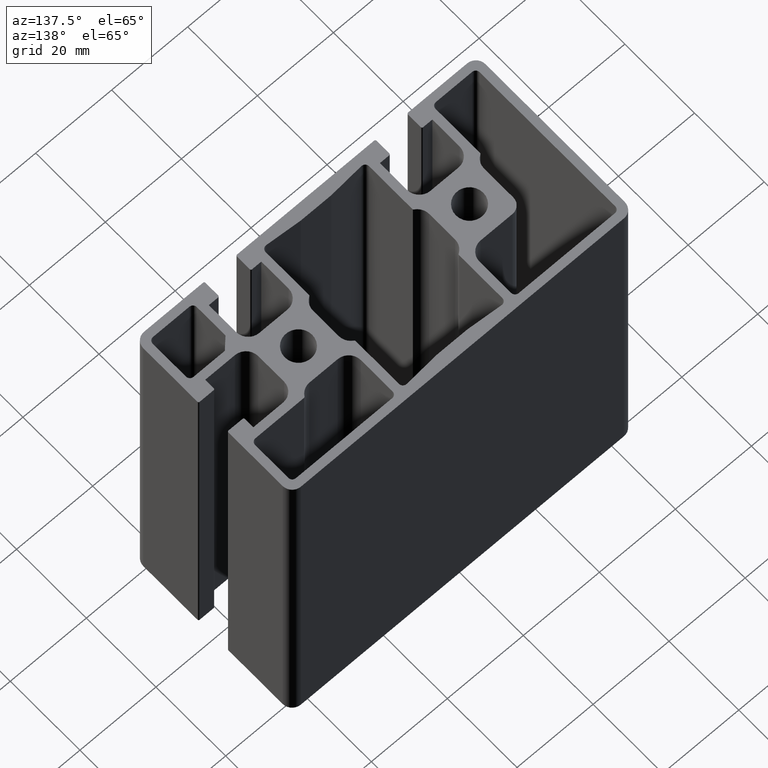
[diagram: clean part render]
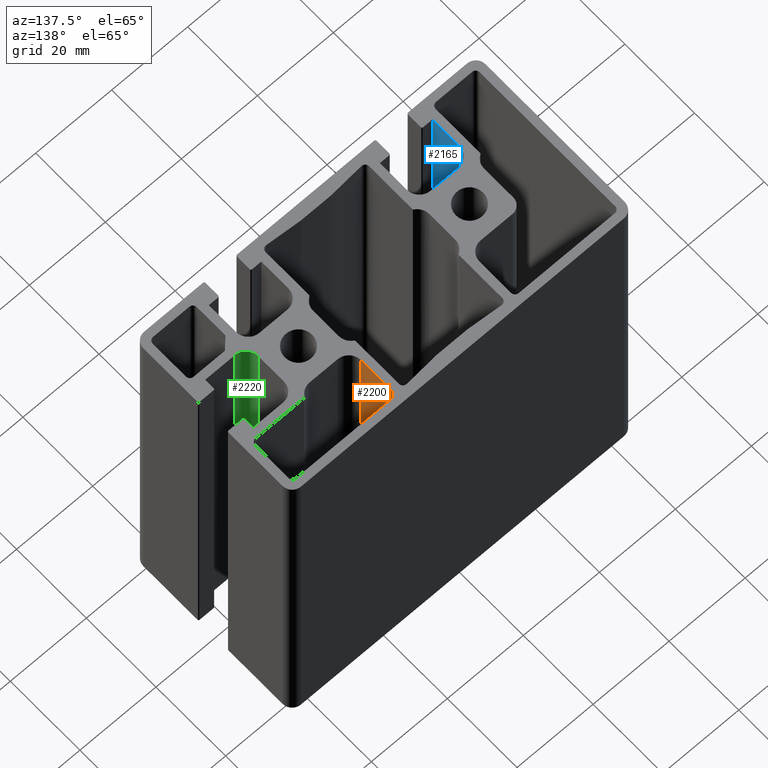
[diagram: same view with three faces highlighted in distinct colors, each labeled with its STEP entity id]
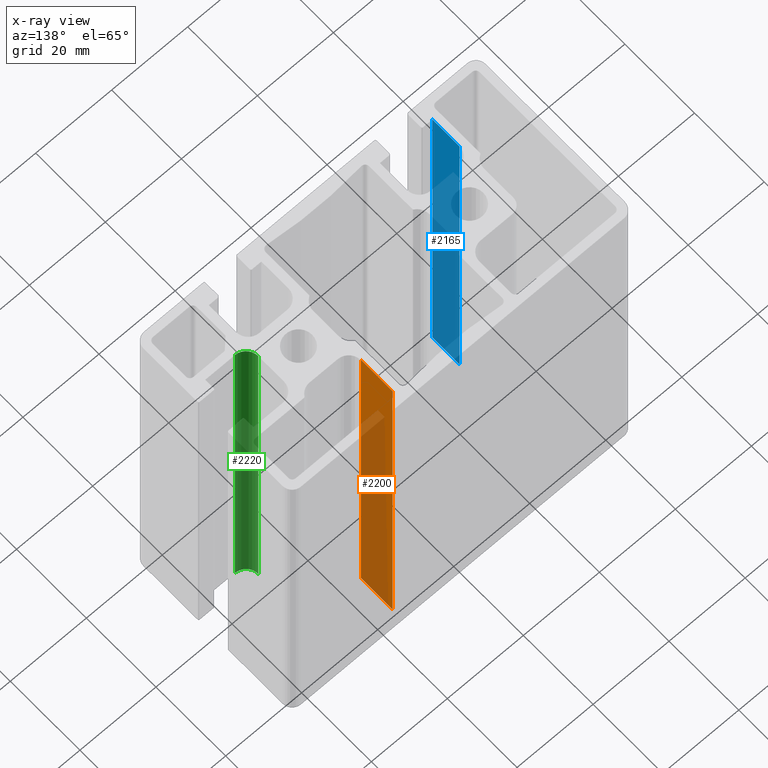
[diagram: x-ray of the same camera — body ghosted, the three highlighted faces saturated]
A machine part, auxiliary view with three faces highlighted in distinct colors.
The next image is the same camera in x-ray (body ghosted, the three faces saturated) — at least one of them is partly hidden behind the body in this view.
Their STEP definitions:

[orange] entity #2200 — the highlighted planar face has unit normal (-1, 0, 0).
#63=PLANE('',#2380);
#155=FACE_OUTER_BOUND('',#267,.T.);
#267=EDGE_LOOP('',(#1692,#1693,#1694,#1695));
#463=LINE('',#3535,#685);
#464=LINE('',#3539,#686);
#465=LINE('',#3541,#687);
#466=LINE('',#3542,#688);
#685=VECTOR('',#2868,100.);
#686=VECTOR('',#2873,9.09999999999999);
#687=VECTOR('',#2874,100.);
#688=VECTOR('',#2875,9.09999999999999);
#1014=VERTEX_POINT('',#3532);
#1015=VERTEX_POINT('',#3534);
#1016=VERTEX_POINT('',#3538);
#1017=VERTEX_POINT('',#3540);
#1298=EDGE_CURVE('',#1015,#1014,#463,.T.);
#1300=EDGE_CURVE('',#1016,#1014,#464,.T.);
#1301=EDGE_CURVE('',#1017,#1016,#465,.T.);
#1302=EDGE_CURVE('',#1015,#1017,#466,.T.);
#1692=ORIENTED_EDGE('',*,*,#1300,.F.);
#1693=ORIENTED_EDGE('',*,*,#1301,.F.);
#1694=ORIENTED_EDGE('',*,*,#1302,.F.);
#1695=ORIENTED_EDGE('',*,*,#1298,.T.);
#2200=ADVANCED_FACE('',(#155),#63,.F.);
#2380=AXIS2_PLACEMENT_3D('',#3537,#2871,#2872);
#2868=DIRECTION('',(0.,0.,1.));
#2871=DIRECTION('center_axis',(-1.,4.88010120714355E-16,0.));
#2872=DIRECTION('ref_axis',(-5.32907051820075E-16,-1.,0.));
#2873=DIRECTION('',(4.88010120714355E-16,1.,0.));
#2874=DIRECTION('',(0.,0.,1.));
#2875=DIRECTION('',(-4.88010120714355E-16,-1.,0.));
#3532=CARTESIAN_POINT('',(15.6,19.5,100.));
#3534=CARTESIAN_POINT('',(15.6,19.5,0.));
#3535=CARTESIAN_POINT('',(15.6,19.5,0.));
#3537=CARTESIAN_POINT('Origin',(15.6,19.5,0.));
#3538=CARTESIAN_POINT('',(15.6,10.4,100.));
#3539=CARTESIAN_POINT('',(15.6,9.74999999999999,100.));
#3540=CARTESIAN_POINT('',(15.6,10.4,0.));
#3541=CARTESIAN_POINT('',(15.6,10.4,0.));
#3542=CARTESIAN_POINT('',(15.6,9.74999999999999,0.));

[blue] entity #2165 — the highlighted planar face has unit normal (-1, 0, 0).
#45=PLANE('',#2311);
#120=FACE_OUTER_BOUND('',#232,.T.);
#232=EDGE_LOOP('',(#1552,#1553,#1554,#1555));
#390=LINE('',#3319,#612);
#391=LINE('',#3323,#613);
#392=LINE('',#3325,#614);
#393=LINE('',#3326,#615);
#612=VECTOR('',#2657,100.);
#613=VECTOR('',#2662,7.8);
#614=VECTOR('',#2663,100.);
#615=VECTOR('',#2664,7.8);
#940=VERTEX_POINT('',#3316);
#941=VERTEX_POINT('',#3318);
#942=VERTEX_POINT('',#3322);
#943=VERTEX_POINT('',#3324);
#1191=EDGE_CURVE('',#941,#940,#390,.T.);
#1193=EDGE_CURVE('',#942,#940,#391,.T.);
#1194=EDGE_CURVE('',#943,#942,#392,.T.);
#1195=EDGE_CURVE('',#941,#943,#393,.T.);
#1552=ORIENTED_EDGE('',*,*,#1193,.F.);
#1553=ORIENTED_EDGE('',*,*,#1194,.F.);
#1554=ORIENTED_EDGE('',*,*,#1195,.F.);
#1555=ORIENTED_EDGE('',*,*,#1191,.T.);
#2165=ADVANCED_FACE('',(#120),#45,.F.);
#2311=AXIS2_PLACEMENT_3D('',#3321,#2660,#2661);
#2657=DIRECTION('',(0.,0.,1.));
#2660=DIRECTION('center_axis',(-1.,0.,0.));
#2661=DIRECTION('ref_axis',(0.,-1.,0.));
#2662=DIRECTION('',(0.,1.,0.));
#2663=DIRECTION('',(0.,0.,1.));
#2664=DIRECTION('',(0.,-1.,0.));
#3316=CARTESIAN_POINT('',(-29.4,-10.4,100.));
#3318=CARTESIAN_POINT('',(-29.4,-10.4,0.));
#3319=CARTESIAN_POINT('',(-29.4,-10.4,0.));
#3321=CARTESIAN_POINT('Origin',(-29.4,-10.4,0.));
#3322=CARTESIAN_POINT('',(-29.4,-18.2,100.));
#3323=CARTESIAN_POINT('',(-29.4,-5.2,100.));
#3324=CARTESIAN_POINT('',(-29.4,-18.2,0.));
#3325=CARTESIAN_POINT('',(-29.4,-18.2,0.));
#3326=CARTESIAN_POINT('',(-29.4,-5.2,0.));

[green] entity #2220 — the highlighted cylindrical surface (edge-blend (fillet) strip) has radius 3.2 mm, axis along (0, 0, 1).
#175=FACE_OUTER_BOUND('',#287,.T.);
#287=EDGE_LOOP('',(#1772,#1773,#1774,#1775));
#504=LINE('',#3659,#726);
#505=LINE('',#3665,#727);
#726=VECTOR('',#2991,100.);
#727=VECTOR('',#2998,100.);
#856=CIRCLE('',#2421,3.2);
#857=CIRCLE('',#2422,3.2);
#1056=VERTEX_POINT('',#3655);
#1057=VERTEX_POINT('',#3657);
#1058=VERTEX_POINT('',#3661);
#1059=VERTEX_POINT('',#3663);
#1360=EDGE_CURVE('',#1057,#1056,#504,.T.);
#1361=EDGE_CURVE('',#1056,#1058,#856,.T.);
#1362=EDGE_CURVE('',#1059,#1057,#857,.T.);
#1363=EDGE_CURVE('',#1059,#1058,#505,.T.);
#1772=ORIENTED_EDGE('',*,*,#1361,.F.);
#1773=ORIENTED_EDGE('',*,*,#1360,.F.);
#1774=ORIENTED_EDGE('',*,*,#1362,.F.);
#1775=ORIENTED_EDGE('',*,*,#1363,.T.);
#2123=CYLINDRICAL_SURFACE('',#2420,3.2);
#2220=ADVANCED_FACE('',(#175),#2123,.F.);
#2420=AXIS2_PLACEMENT_3D('',#3660,#2992,#2993);
#2421=AXIS2_PLACEMENT_3D('',#3662,#2994,#2995);
#2422=AXIS2_PLACEMENT_3D('',#3664,#2996,#2997);
#2991=DIRECTION('',(0.,0.,1.));
#2992=DIRECTION('center_axis',(0.,0.,1.));
#2993=DIRECTION('ref_axis',(1.,8.67361737988403E-16,0.));
#2994=DIRECTION('center_axis',(0.,0.,-1.));
#2995=DIRECTION('ref_axis',(1.,8.67361737988403E-16,0.));
#2996=DIRECTION('center_axis',(0.,0.,1.));
#2997=DIRECTION('ref_axis',(1.,8.67361737988403E-16,0.));
#2998=DIRECTION('',(0.,0.,1.));
#3655=CARTESIAN_POINT('',(32.9,-6.90000000000001,100.));
#3657=CARTESIAN_POINT('',(32.9,-6.90000000000001,0.));
#3659=CARTESIAN_POINT('',(32.9,-6.90000000000001,0.));
#3660=CARTESIAN_POINT('Origin',(32.9,-3.70000000000001,0.));
#3661=CARTESIAN_POINT('',(29.7,-3.70000000000001,100.));
#3662=CARTESIAN_POINT('Origin',(32.9,-3.70000000000001,100.));
#3663=CARTESIAN_POINT('',(29.7,-3.70000000000001,0.));
#3664=CARTESIAN_POINT('Origin',(32.9,-3.70000000000001,0.));
#3665=CARTESIAN_POINT('',(29.7,-3.70000000000001,0.));